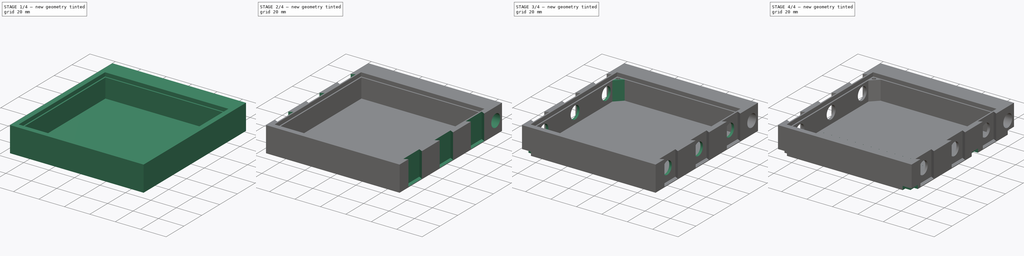
[diagram: build sequence overview — one tinted view per stage of 4, left to right]
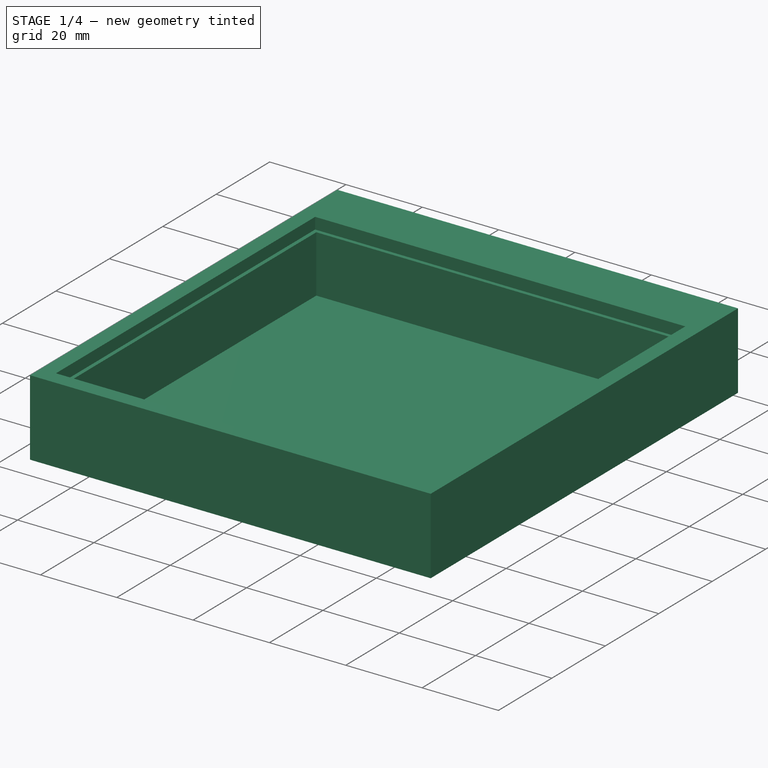
[diagram: stage 1 of 4 — iso view after this stage's code; geometry added in this stage tinted green]
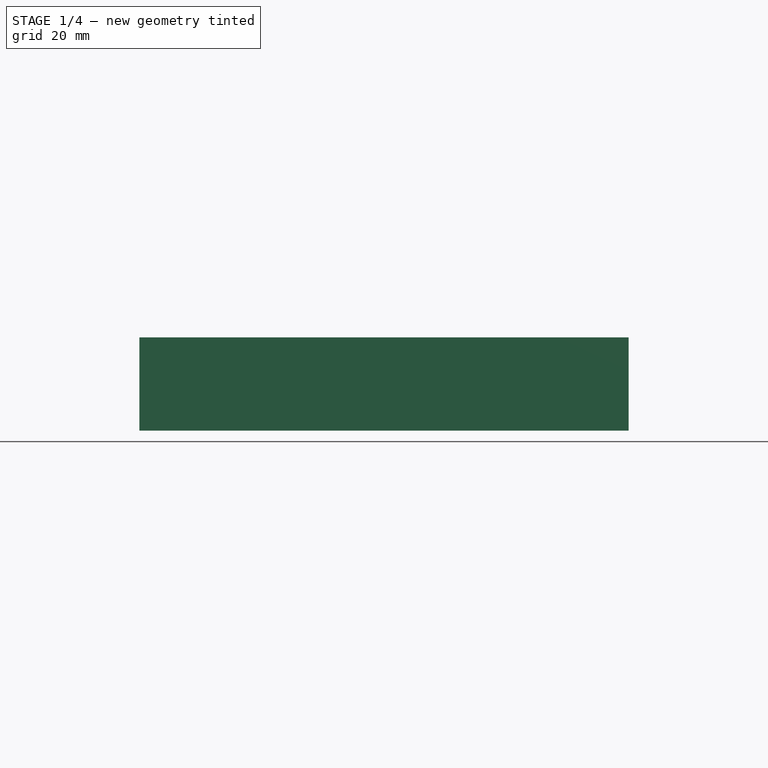
[diagram: stage 1 of 4 — front view after this stage's code; geometry added in this stage tinted green]
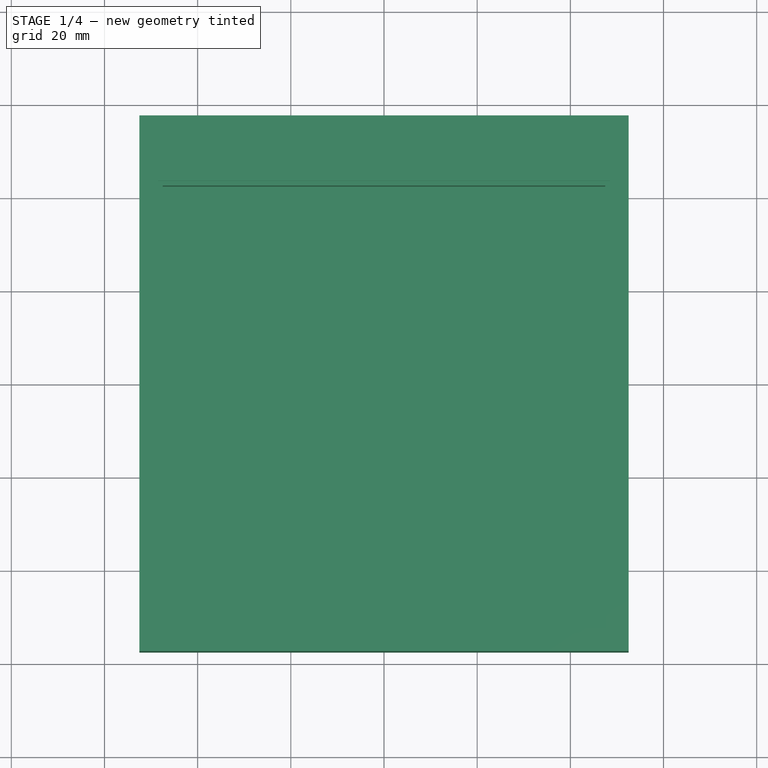
[diagram: stage 1 of 4 — top view after this stage's code; geometry added in this stage tinted green]
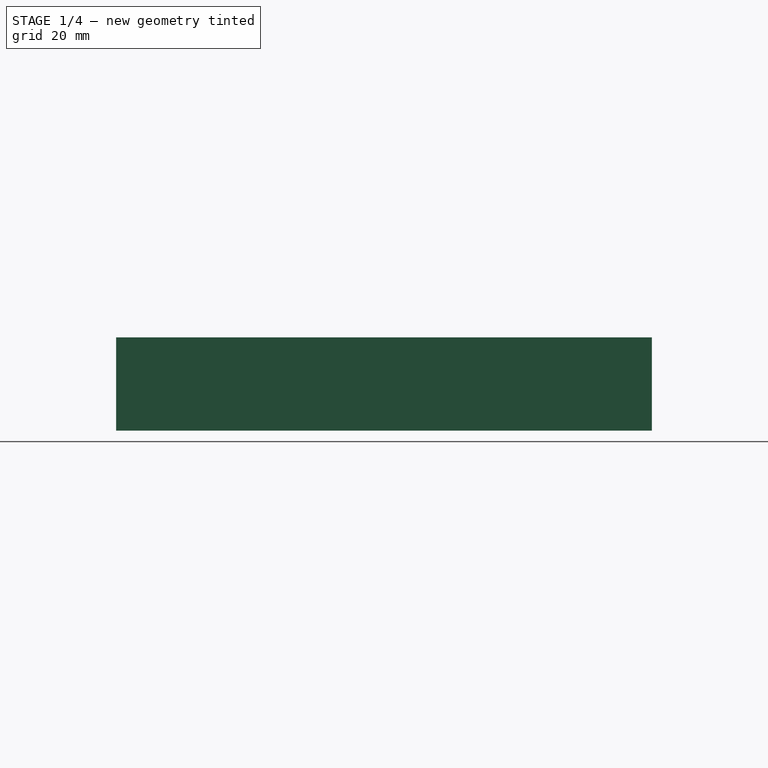
[diagram: stage 1 of 4 — right view after this stage's code; geometry added in this stage tinted green]
FCSTD DOCUMENT  (FreeCAD 0.18R16146 (Git))
Label: Formicarium_Template_M
License: All rights reserved
LicenseURL: http://en.wikipedia.org/wiki/All_rights_reserved
objects: Sketcher::SketchObject×11, PartDesign::Pocket×7, PartDesign::Pad×2, PartDesign::Mirrored×2, PartDesign::LinearPattern×2, PartDesign::SubtractiveLoft×1, PartDesign::MultiTransform×1, PartDesign::Body×1
note: 37 computed .brp shape members not serialized (recipe doc carries the construction recipe); baked Part::Feature solids carry a one-line shape summary decoded from their .brp

FEATURE [Sketcher::SketchObject] Sketch
  MapMode = 5
  Support = -> [XY_Plane]
  sketch-geometry (4):
    g0: LineSegment StartX=-52.5 StartY=57.5 StartZ=0 EndX=52.5 EndY=57.5 EndZ=0
    g1: LineSegment StartX=52.5 StartY=57.5 StartZ=0 EndX=52.5 EndY=-57.5 EndZ=0
    g2: LineSegment StartX=52.5 StartY=-57.5 StartZ=0 EndX=-52.5 EndY=-57.5 EndZ=0
    g3: LineSegment StartX=-52.5 StartY=-57.5 StartZ=0 EndX=-52.5 EndY=57.5 EndZ=0
  constraints (10):
    c: Coincident(g0,g1)
    c: Coincident(g1,g2)
    c: Coincident(g2,g3)
    c: Coincident(g3,g0)
    c: Horizontal(g0)
    c: Vertical(g3)
    c: DistanceX(g0,g0) = 105
    c: DistanceY(g1,g1) = 115
    c: Symmetric(g0,g1,g-1)
    c: Symmetric(g2,g1,g-2)
FEATURE [PartDesign::Pad] Pad  label="Main Body"
  Length = 20
  Length2 = 100
  Profile = -> Sketch
  Type = 0
FEATURE [Sketcher::SketchObject] Sketch001
  MapMode = 5
  Placement = pos=(0,0,20) rot=(0,0,1;0rad)
  Support = -> [Pad]
  sketch-geometry (4):
    g0: LineSegment StartX=-48.5 StartY=43.5 StartZ=0 EndX=48.5 EndY=43.5 EndZ=0
    g1: LineSegment StartX=48.5 StartY=43.5 StartZ=0 EndX=48.5 EndY=-53.5 EndZ=0
    g2: LineSegment StartX=48.5 StartY=-53.5 StartZ=0 EndX=-48.5 EndY=-53.5 EndZ=0
    g3: LineSegment StartX=-48.5 StartY=-53.5 StartZ=0 EndX=-48.5 EndY=43.5 EndZ=0
  constraints (11):
    c: Coincident(g0,g1)
    c: Coincident(g1,g2)
    c: Coincident(g2,g3)
    c: Coincident(g3,g0)
    c: Horizontal(g0)
    c: Vertical(g3)
    c: DistanceX(g2,g2) = 97
    c: DistanceY(g1,g1) = 97
    c: Symmetric(g2,g1,g-2)
    c: Vertical(g1)
    c: DistanceY(g2,g-1) = 53.5
FEATURE [PartDesign::Pocket] Pocket  label="Glass_cut"
  BaseFeature = -> Pad
  Length = 3
  Length2 = 100
  Profile = -> Sketch001
  Type = 0
FEATURE [Sketcher::SketchObject] Sketch002
  MapMode = 5
  Placement = pos=(0,0,17) rot=(0,0,1;0rad)
  Support = -> [Pocket]
  sketch-geometry (4):
    g0: LineSegment StartX=-47.5 StartY=42.5 StartZ=0 EndX=47.5 EndY=42.5 EndZ=0
    g1: LineSegment StartX=47.5 StartY=42.5 StartZ=0 EndX=47.5 EndY=-52.5 EndZ=0
    g2: LineSegment StartX=47.5 StartY=-52.5 StartZ=0 EndX=-47.5 EndY=-52.5 EndZ=0
    g3: LineSegment StartX=-47.5 StartY=-52.5 StartZ=0 EndX=-47.5 EndY=42.5 EndZ=0
  constraints (11):
    c: Coincident(g0,g1)
    c: Coincident(g1,g2)
    c: Coincident(g2,g3)
    c: Coincident(g3,g0)
    c: Horizontal(g0)
    c: Vertical(g1)
    c: DistanceX(g2,g2) = 95
    c: DistanceY(g3,g3) = 95
    c: Symmetric(g2,g1,g-2)
    c: Vertical(g3)
    c: DistanceY(g1,g-1) = 52.5
FEATURE [PartDesign::Pocket] Pocket001  label="Body Cut"
  BaseFeature = -> Pocket
  Length = 15
  Length2 = 100
  Profile = -> Sketch002
  Type = 0
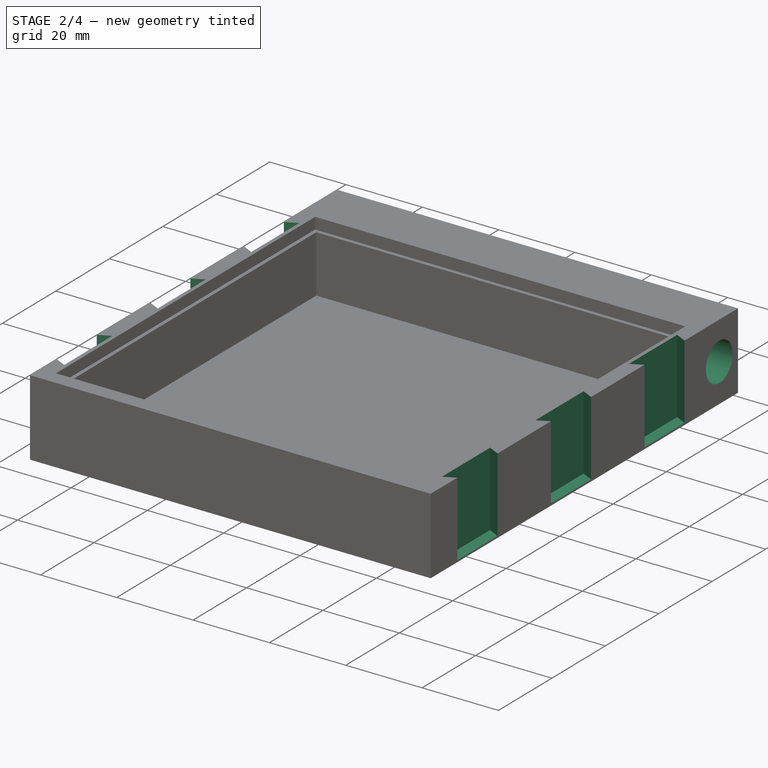
[diagram: stage 2 of 4 — iso view after this stage's code; geometry added in this stage tinted green]
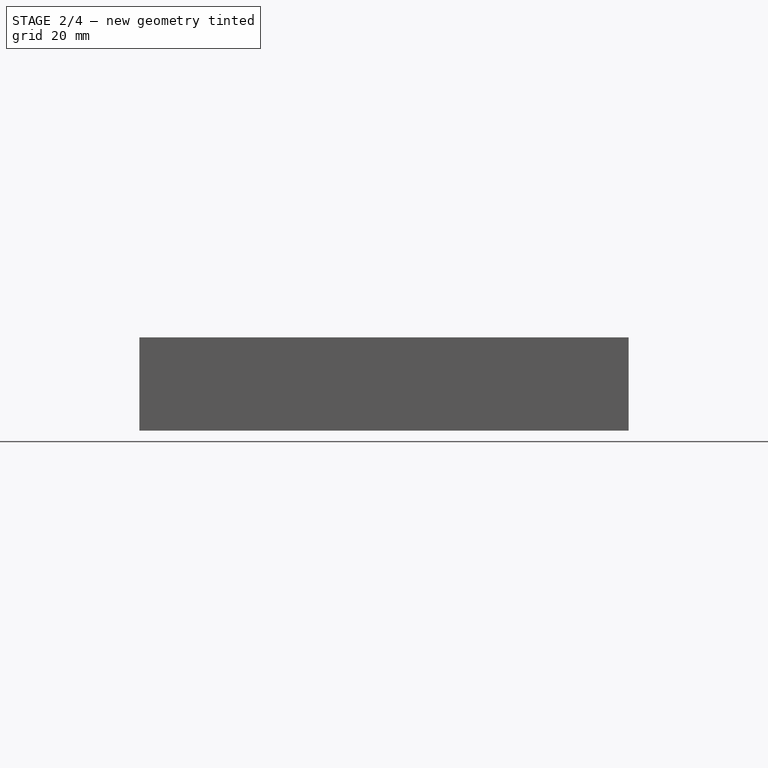
[diagram: stage 2 of 4 — front view after this stage's code; geometry added in this stage tinted green]
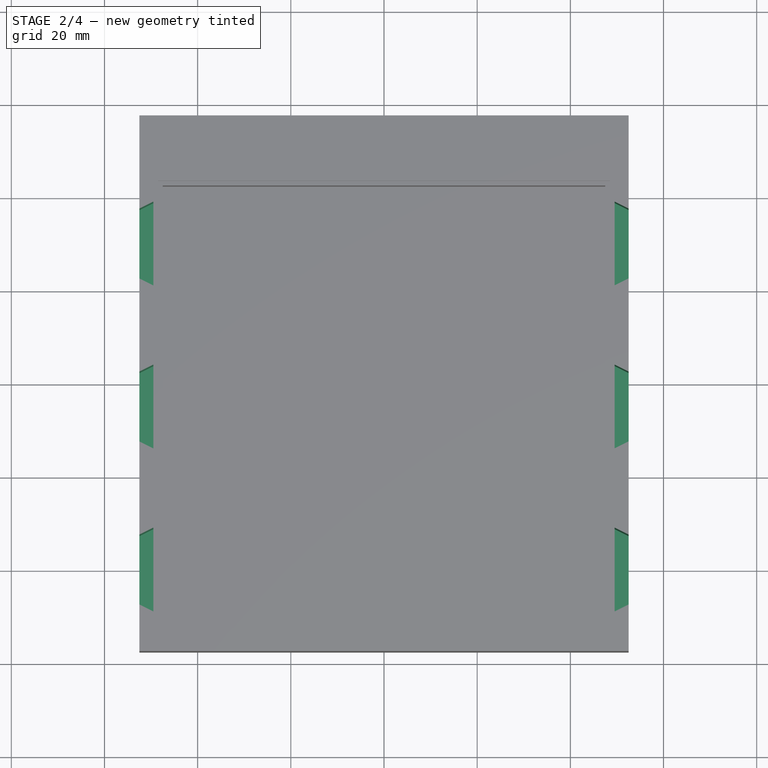
[diagram: stage 2 of 4 — top view after this stage's code; geometry added in this stage tinted green]
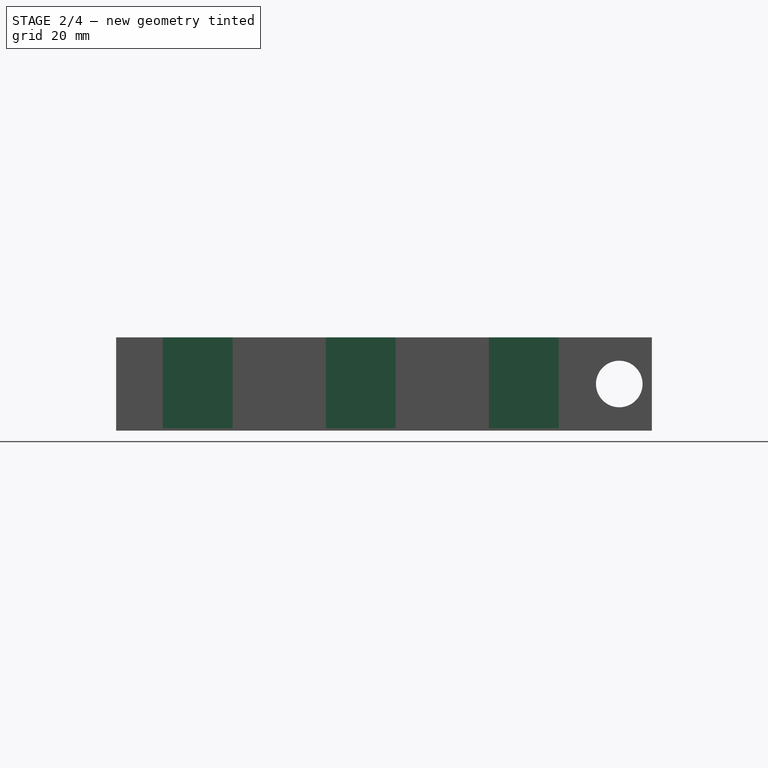
[diagram: stage 2 of 4 — right view after this stage's code; geometry added in this stage tinted green]
FEATURE [Sketcher::SketchObject] Sketch003
  ExternalGeometry = -> [Pocket001]
  MapMode = 5
  Placement = pos=(0,0,2) rot=(0,0,1;0rad)
  Support = -> [Pocket001]
  sketch-geometry (4):
    g0: LineSegment StartX=-43.9 StartY=-48.5 StartZ=0 EndX=-43.5 EndY=-48.5 EndZ=0
    g1: LineSegment StartX=-43.5 StartY=-48.5 StartZ=0 EndX=-43.5 EndY=-48.9 EndZ=0
    g2: LineSegment StartX=-43.5 StartY=-48.9 StartZ=0 EndX=-43.9 EndY=-48.9 EndZ=0
    g3: LineSegment StartX=-43.9 StartY=-48.9 StartZ=0 EndX=-43.9 EndY=-48.5 EndZ=0
  constraints (14):
    c: Coincident(g0,g1)
    c: Coincident(g1,g2)
    c: Coincident(g2,g3)
    c: Coincident(g3,g0)
    c: Horizontal(g0)
    c: Horizontal(g2)
    c: Vertical(g1)
    c: Vertical(g3)
    c: DistanceX(g2,g2) = 0.4
    c: DistanceY(g1,g1) = 0.4
    c: DistanceX(g-3,g-1) = 47.5
    c: DistanceY(g0,g-1) = 48.5
    c: DistanceX(g0,g-1) = 43.5
    c: DistanceY(g-3,g-1) = 52.5
FEATURE [Sketcher::SketchObject] Sketch004
  MapMode = 5
  Placement = pos=(-52.5,0,0) rot=(0.57735,-0.57735,-0.57735;2.0944rad)
  sketch-geometry (1):
    g0: Circle CenterX=-50.5 CenterY=10 CenterZ=0 NormalX=0 NormalY=0 NormalZ=1 AngleXU=0 Radius=5
  constraints (3):
    c: Radius(g0) = 5
    c: DistanceY(g-1,g0) = 10
    c: DistanceX(g0) = -50.5
FEATURE [PartDesign::Pocket] Pocket003  label="Heating Cable"
  BaseFeature = -> Pocket001
  Length = 5
  Length2 = 100
  Profile = -> Sketch004
  Type = 1
FEATURE [Sketcher::SketchObject] Sketch005
  ExternalGeometry = -> [Pocket003]
  MapMode = 5
  Placement = pos=(0,0,20) rot=(0,0,1;0rad)
  Support = -> [Pocket003]
  sketch-geometry (12):
    g0: LineSegment StartX=-52.5 StartY=-47.5 StartZ=0 EndX=-52.5 EndY=-32.5 EndZ=0
    g1: LineSegment StartX=-52.5 StartY=-32.5 StartZ=0 EndX=-49.5 EndY=-31 EndZ=0
    g2: LineSegment StartX=-49.5 StartY=-31 StartZ=0 EndX=-49.5 EndY=-49 EndZ=0
    g3: LineSegment StartX=-49.5 StartY=-49 StartZ=0 EndX=-52.5 EndY=-47.5 EndZ=0
    g4: LineSegment StartX=-52.5 StartY=2.5 StartZ=0 EndX=-52.5 EndY=-12.5 EndZ=0
    g5: LineSegment StartX=-52.5 StartY=-12.5 StartZ=0 EndX=-49.5 EndY=-14 EndZ=0
    g6: LineSegment StartX=-49.5 StartY=-14 StartZ=0 EndX=-49.5 EndY=4 EndZ=0
    g7: LineSegment StartX=-49.5 StartY=4 StartZ=0 EndX=-52.5 EndY=2.5 EndZ=0
    g8: LineSegment StartX=-52.5 StartY=37.5 StartZ=0 EndX=-52.5 EndY=22.5 EndZ=0
    g9: LineSegment StartX=-52.5 StartY=22.5 StartZ=0 EndX=-49.5 EndY=21 EndZ=0
    g10: LineSegment StartX=-49.5 StartY=21 StartZ=0 EndX=-49.5 EndY=39 EndZ=0
    g11: LineSegment StartX=-49.5 StartY=39 StartZ=0 EndX=-52.5 EndY=37.5 EndZ=0
  constraints (37):
    c: Coincident(g0,g1)
    c: Coincident(g1,g2)
    c: Coincident(g2,g3)
    c: Coincident(g3,g0)
    c: Vertical(g2)
    c: DistanceY(g2,g2) = 18
    c: DistanceY(g0,g0) = 15
    c: Vertical(g0)
    c: DistanceX(g0,g1) = 3
    c: Equal(g1,g3)
    c: DistanceY(g0,g-1) = 47.5
    c: DistanceX(g0,g-1) = 52.5
    c: Coincident(g4,g5)
    c: Coincident(g5,g6)
    c: Coincident(g6,g7)
    c: Coincident(g7,g4)
    c: Equal(g5,g3)
    c: Equal(g7,g1)
    c: Equal(g6,g2)
    c: Equal(g4,g0)
    c: DistanceX(g4,g6) = 3
    c: Vertical(g4)
    c: DistanceY(g0,g4) = 20
    c: DistanceX(g4,g-1) = 52.5
    c: DistanceY(g-3,g-1) = 57.5
    c: Coincident(g8,g9)
    c: Coincident(g9,g10)
    c: Coincident(g10,g11)
    c: Coincident(g11,g8)
    c: Equal(g8,g0)
    c: Equal(g2,g10)
    c: Equal(g1,g11)
    c: Equal(g9,g3)
    c: Vertical(g8)
    c: Vertical(g10)
    c: DistanceY(g4,g8) = 20
    c: DistanceX(g8,g-1) = 52.5
FEATURE [PartDesign::Pocket] Pocket004  label="Connector Cutouts"
  BaseFeature = -> Pocket003
  Length = 19.5
  Length2 = 100
  Profile = -> Sketch005
  Type = 0
FEATURE [PartDesign::Mirrored] Mirrored  label="CC_Mirror"
  BaseFeature = -> Pocket004
  MirrorPlane = -> Sketch005 [V_Axis]
  Originals = -> [Pocket004]
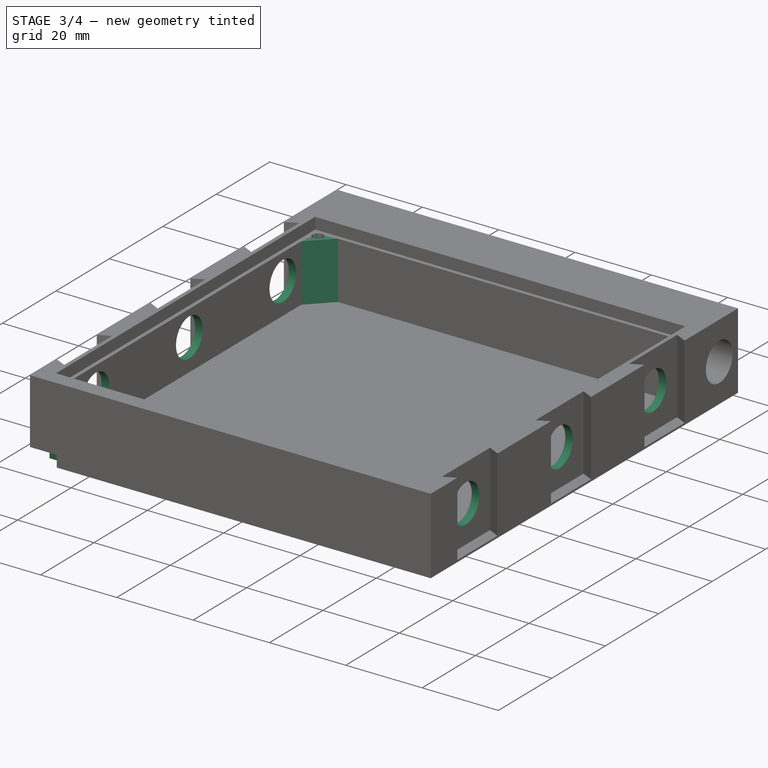
[diagram: stage 3 of 4 — iso view after this stage's code; geometry added in this stage tinted green]
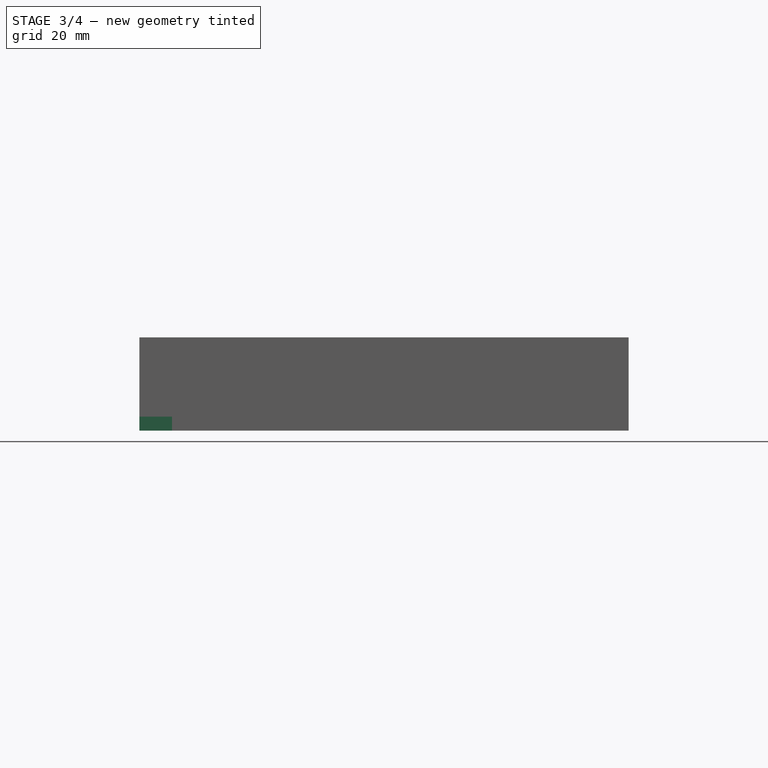
[diagram: stage 3 of 4 — front view after this stage's code; geometry added in this stage tinted green]
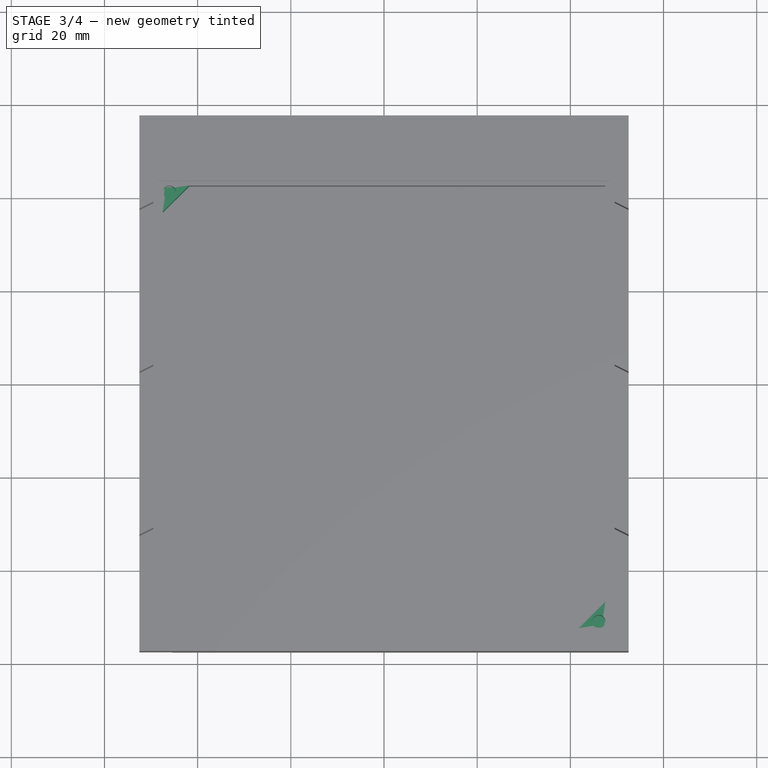
[diagram: stage 3 of 4 — top view after this stage's code; geometry added in this stage tinted green]
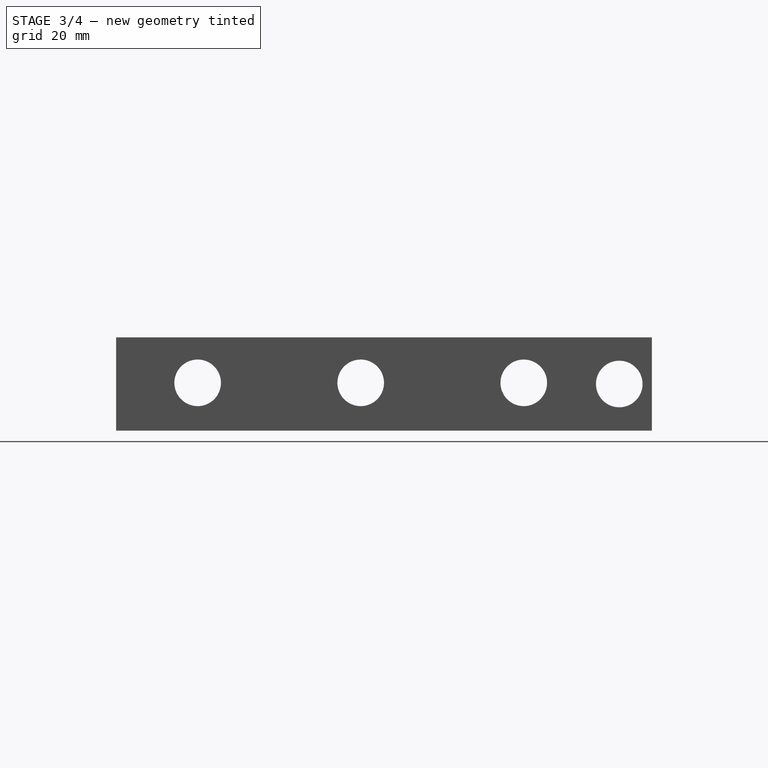
[diagram: stage 3 of 4 — right view after this stage's code; geometry added in this stage tinted green]
FEATURE [Sketcher::SketchObject] Sketch006
  ExternalGeometry = -> [Mirrored]
  MapMode = 5
  Placement = pos=(-49.5,0,0) rot=(0.57735,-0.57735,-0.57735;2.0944rad)
  Support = -> [Mirrored]
  sketch-geometry (3):
    g0: Circle CenterX=5 CenterY=10.25 CenterZ=0 NormalX=0 NormalY=0 NormalZ=1 AngleXU=0 Radius=5
    g1: Circle CenterX=40 CenterY=10.25 CenterZ=0 NormalX=0 NormalY=0 NormalZ=1 AngleXU=0 Radius=5
    g2: Circle CenterX=-30 CenterY=10.25 CenterZ=0 NormalX=0 NormalY=0 NormalZ=1 AngleXU=0 Radius=5
  constraints (9):
    c: Radius(g0) = 5
    c: DistanceY(g-3,g0) = 9.75
    c: DistanceX(g-3,g0) = 7.5
    c: Equal(g1,g0)
    c: Equal(g0,g2)
    c: Horizontal(g0,g2)
    c: Horizontal(g2,g1)
    c: DistanceX(g-5,g2) = 7.5
    c: DistanceX(g-4,g1) = 7.5
FEATURE [PartDesign::Pocket] Pocket005
  BaseFeature = -> Mirrored
  Length = 5
  Length2 = 100
  Profile = -> Sketch006
  Type = 1
FEATURE [Sketcher::SketchObject] Sketch010
  ExternalGeometry = -> [Pocket005]
  MapMode = 5
  Placement = pos=(0,0,2) rot=(0,0,1;0rad)
  Support = -> [Pocket005]
  sketch-geometry (6):
    g0: LineSegment StartX=-47.5 StartY=42.5 StartZ=0 EndX=-47.5 EndY=36.8431 EndZ=0
    g1: LineSegment StartX=-47.5 StartY=36.8431 StartZ=0 EndX=-41.8431 EndY=42.5 EndZ=0
    g2: LineSegment StartX=-41.8431 StartY=42.5 StartZ=0 EndX=-47.5 EndY=42.5 EndZ=0
    g3: LineSegment StartX=41.8431 StartY=-52.5 StartZ=0 EndX=47.5 EndY=-52.5 EndZ=0
    g4: LineSegment StartX=47.5 StartY=-52.5 StartZ=0 EndX=47.5 EndY=-46.8431 EndZ=0
    g5: LineSegment StartX=47.5 StartY=-46.8431 StartZ=0 EndX=41.8431 EndY=-52.5 EndZ=0
  constraints (16):
    c: Coincident(g0,g1)
    c: Coincident(g0,g2)
    c: Coincident(g1,g2)
    c: Coincident(g3,g5)
    c: Coincident(g3,g4)
    c: Coincident(g4,g5)
    c: Perpendicular(g0,g2)
    c: Equal(g0,g2)
    c: Distance(g5) = 8
    c: Equal(g3,g4)
    c: Perpendicular(g4,g3)
    c: PointOnObject(g1,g-3)
    c: Coincident(g0,g-3)
    c: Coincident(g-4,g3)
    c: PointOnObject(g3,g-4)
    c: Equal(g1,g5)
FEATURE [PartDesign::Pad] Pad001  label="Borehole_Support"
  BaseFeature = -> Pocket005
  Length = 15
  Length2 = 100
  Profile = -> Sketch010
  Type = 0
FEATURE [Sketcher::SketchObject] Sketch011
  ExternalGeometry = -> [Pad001]
  MapMode = 5
  Placement = pos=(0,0,17) rot=(0,0,1;0rad)
  Support = -> [Pad001]
  sketch-geometry (2):
    g0: Circle CenterX=-46.1 CenterY=41.1 CenterZ=0 NormalX=0 NormalY=0 NormalZ=1 AngleXU=0 Radius=1.4
    g1: Circle CenterX=46.1 CenterY=-51.1 CenterZ=0 NormalX=0 NormalY=0 NormalZ=1 AngleXU=0 Radius=1.4
  constraints (6):
    c: Radius(g0) = 1.4
    c: Equal(g0,g1)
    c: Tangent(g-3,g0)
    c: Tangent(g-4,g0)
    c: Tangent(g-6,g1)
    c: Tangent(g-5,g1)
FEATURE [PartDesign::Pocket] Pocket009  label="Boreholes"
  BaseFeature = -> Pad001
  Length = 8
  Length2 = 100
  Profile = -> Sketch011
  Type = 0
FEATURE [Sketcher::SketchObject] Sketch012
  MapMode = 5
  Placement = pos=(0,0,0) rot=(1,0,0;3.14159rad)
  Support = -> [Pocket009]
  sketch-geometry (16):
    g0: LineSegment StartX=-52.5 StartY=-10 StartZ=0 EndX=-49.5 EndY=-10 EndZ=0
    g1: LineSegment StartX=-49.5 StartY=-10 StartZ=0 EndX=-49.5 EndY=-17 EndZ=0
    g2: LineSegment StartX=-49.5 StartY=-17 StartZ=0 EndX=-52.5 EndY=-17 EndZ=0
    g3: LineSegment StartX=-52.5 StartY=-17 StartZ=0 EndX=-52.5 EndY=-10 EndZ=0
    g4: LineSegment StartX=-52.5 StartY=50.5 StartZ=0 EndX=-49.5 EndY=50.5 EndZ=0
    g5: LineSegment StartX=-49.5 StartY=50.5 StartZ=0 EndX=-49.5 EndY=54.5 EndZ=0
    g6: LineSegment StartX=-49.5 StartY=54.5 StartZ=0 EndX=-45.5 EndY=54.5 EndZ=0
    g7: LineSegment StartX=-45.5 StartY=54.5 StartZ=0 EndX=-45.5 EndY=57.5 EndZ=0
    g8: LineSegment StartX=-45.5 StartY=57.5 StartZ=0 EndX=-52.5 EndY=57.5 EndZ=0
    g9: LineSegment StartX=-52.5 StartY=57.5 StartZ=0 EndX=-52.5 EndY=50.5 EndZ=0
    g10: LineSegment StartX=-52.5 StartY=-50.5 StartZ=0 EndX=-52.5 EndY=-57.5 EndZ=0
    g11: LineSegment StartX=-52.5 StartY=-57.5 StartZ=0 EndX=-45.5 EndY=-57.5 EndZ=0
    g12: LineSegment StartX=-45.5 StartY=-57.5 StartZ=0 EndX=-45.5 EndY=-54.5 EndZ=0
    g13: LineSegment StartX=-45.5 StartY=-54.5 StartZ=0 EndX=-49.5 EndY=-54.5 EndZ=0
    g14: LineSegment StartX=-49.5 StartY=-54.5 StartZ=0 EndX=-49.5 EndY=-50.5 EndZ=0
    g15: LineSegment StartX=-49.5 StartY=-50.5 StartZ=0 EndX=-52.5 EndY=-50.5 EndZ=0
  constraints (48):
    c: Coincident(g0,g1)
    c: Coincident(g1,g2)
    c: Coincident(g2,g3)
    c: Coincident(g3,g0)
    c: Horizontal(g0)
    c: Horizontal(g2)
    c: Vertical(g3)
    c: DistanceY(g1,g1) = 7
    c: DistanceX(g0,g0) = 3
    c: Coincident(g4,g5)
    c: Coincident(g5,g6)
    c: Coincident(g6,g7)
    c: Vertical(g7)
    c: Coincident(g7,g8)
    c: Coincident(g8,g9)
    c: Coincident(g9,g4)
    c: Vertical(g9)
    c: Vertical(g5)
    c: Horizontal(g8)
    c: Horizontal(g4)
    c: DistanceX(g4,g4) = 3
    c: DistanceX(g8,g8) = 7
    c: DistanceY(g7,g7) = 3
    c: DistanceY(g9,g9) = 7
    c: Perpendicular(g5,g6)
    c: DistanceX(g4,g-1) = 52.5
    c: DistanceY(g8) = 57.5
    c: Coincident(g10,g11)
    c: Horizontal(g11)
    c: Coincident(g11,g12)
    c: Coincident(g12,g13)
    c: Horizontal(g13)
    c: Coincident(g13,g14)
    c: Coincident(g14,g15)
    c: Coincident(g15,g10)
    c: Horizontal(g15)
    c: Vertical(g14)
    c: Vertical(g10)
    c: Vertical(g12)
    c: DistanceX(g11,g11) = 7
    c: DistanceX(g15,g15) = 3
    c: DistanceY(g10,g10) = 7
    c: DistanceY(g12,g12) = 3
    c: DistanceY(g10,g-1) = 57.5
    c: Vertical(g2,g4)
    c: Vertical(g4,g10)
    c: Equal(g2,g0)
    c: DistanceY(g0,g-1) = 10
FEATURE [PartDesign::Pocket] Pocket010
  BaseFeature = -> Pocket009
  Length = 3
  Length2 = 100
  Profile = -> Sketch012
  Type = 0
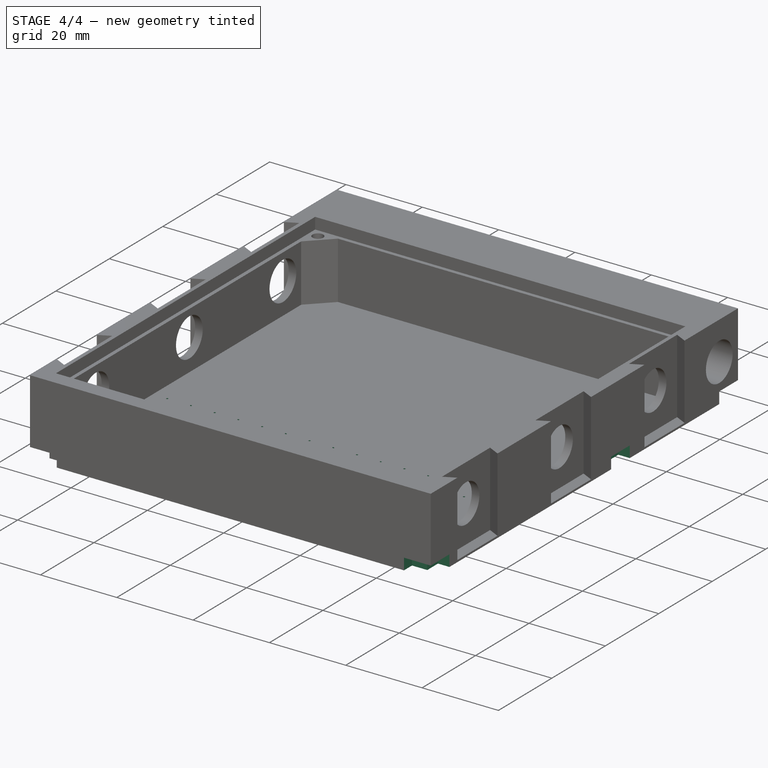
[diagram: stage 4 of 4 — iso view after this stage's code; geometry added in this stage tinted green]
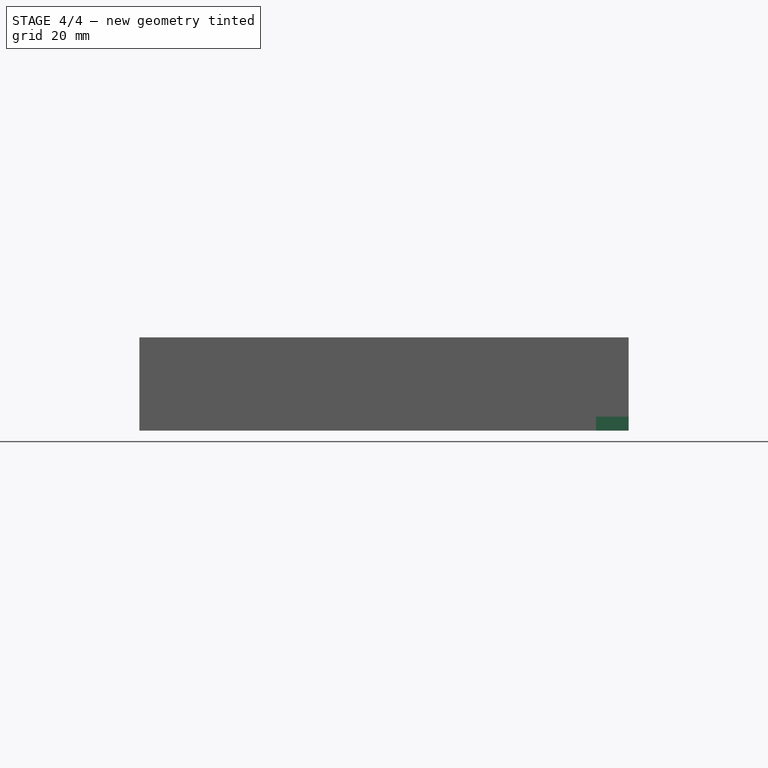
[diagram: stage 4 of 4 — front view after this stage's code; geometry added in this stage tinted green]
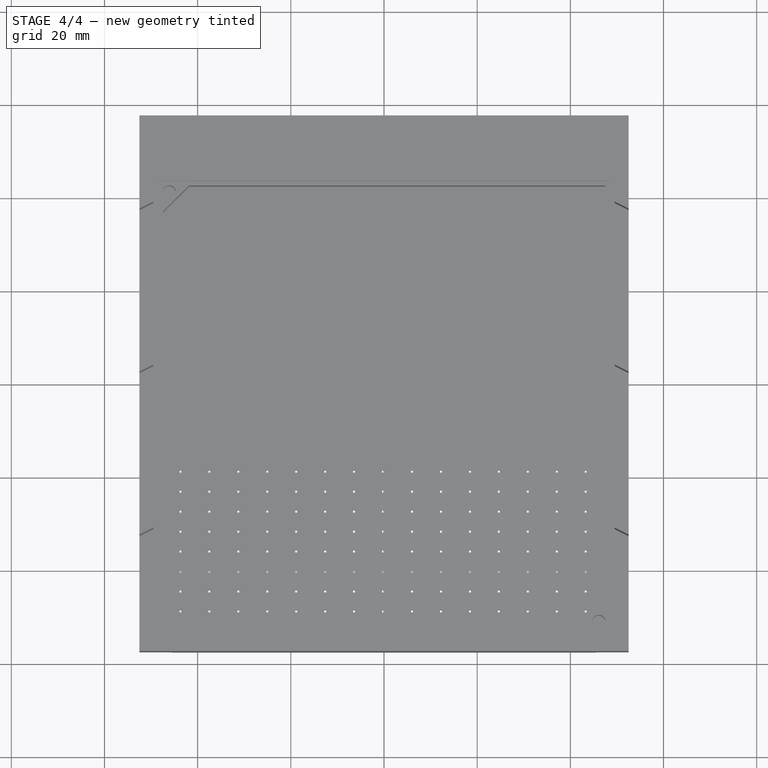
[diagram: stage 4 of 4 — top view after this stage's code; geometry added in this stage tinted green]
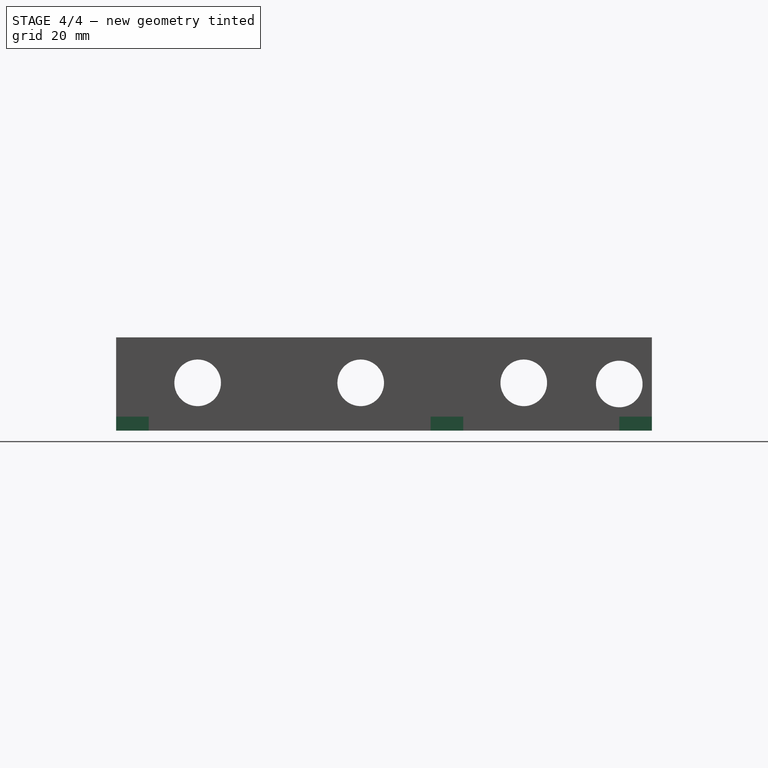
[diagram: stage 4 of 4 — right view after this stage's code; geometry added in this stage tinted green]
FEATURE [PartDesign::Mirrored] Mirrored001
  BaseFeature = -> Pocket010
  MirrorPlane = -> Sketch012 [V_Axis]
  Originals = -> [Pocket010]
FEATURE [Sketcher::SketchObject] Sketch013
  MapMode = 5
  Placement = pos=(0,0,0) rot=(1,0,0;3.14159rad)
  Support = -> [Mirrored001]
  sketch-geometry (4):
    g0: LineSegment StartX=-44.3 StartY=49.3 StartZ=0 EndX=-43.1 EndY=49.3 EndZ=0
    g1: LineSegment StartX=-43.1 StartY=49.3 StartZ=0 EndX=-43.1 EndY=48.1 EndZ=0
    g2: LineSegment StartX=-43.1 StartY=48.1 StartZ=0 EndX=-44.3 EndY=48.1 EndZ=0
    g3: LineSegment StartX=-44.3 StartY=48.1 StartZ=0 EndX=-44.3 EndY=49.3 EndZ=0
  constraints (12):
    c: Coincident(g0,g1)
    c: Coincident(g1,g2)
    c: Coincident(g2,g3)
    c: Coincident(g3,g0)
    c: Horizontal(g0)
    c: Horizontal(g2)
    c: Vertical(g1)
    c: Vertical(g3)
    c: DistanceY(g1,g1) = 1.2
    c: DistanceX(g0,g0) = 1.2
    c: DistanceY(g1) = 48.1
    c: DistanceX(g1) = -43.1
FEATURE [PartDesign::SubtractiveLoft] SubtractiveLoft
  BaseFeature = -> Mirrored001
  Closed = false
  Profile = -> Sketch003
  Ruled = false
  Sections = -> [Sketch013]
FEATURE [PartDesign::LinearPattern] LinearPattern
  Direction = -> Sketch003 [H_Axis]
  Length = 87
  Occurrences = 15
FEATURE [PartDesign::LinearPattern] LinearPattern001
  Direction = -> Sketch003 [V_Axis]
  Length = 30
  Occurrences = 8
FEATURE [PartDesign::MultiTransform] MultiTransform
  BaseFeature = -> SubtractiveLoft
  Originals = -> [SubtractiveLoft]
  Transformations = -> [LinearPattern,LinearPattern001]
FEATURE [PartDesign::Body] Body
  Group = -> [Sketch,Pad,Sketch001,Pocket,Sketch002,Pocket001,Sketch003,Sketch004,Pocket003,Sketch005,Pocket004,Mirrored,Sketch006,Pocket005,Sketch010,Pad001,Sketch011,Pocket009,Sketch012,Pocket010,Mirrored001,Sketch013,SubtractiveLoft,MultiTransform,LinearPattern,LinearPattern001]
  Origin = -> Origin
  Tip = -> MultiTransform
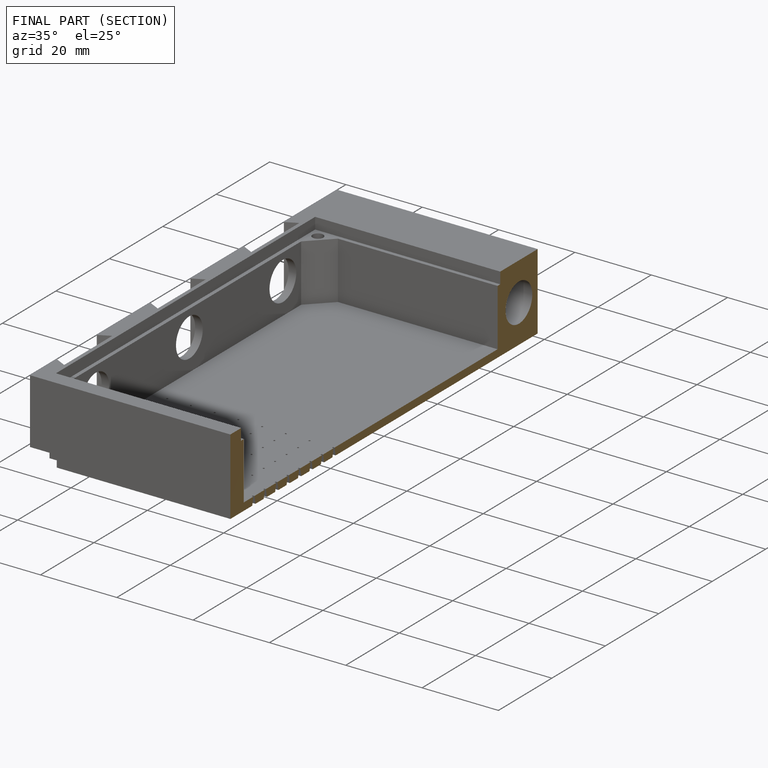
[diagram: finished part — half-section view (interior)]
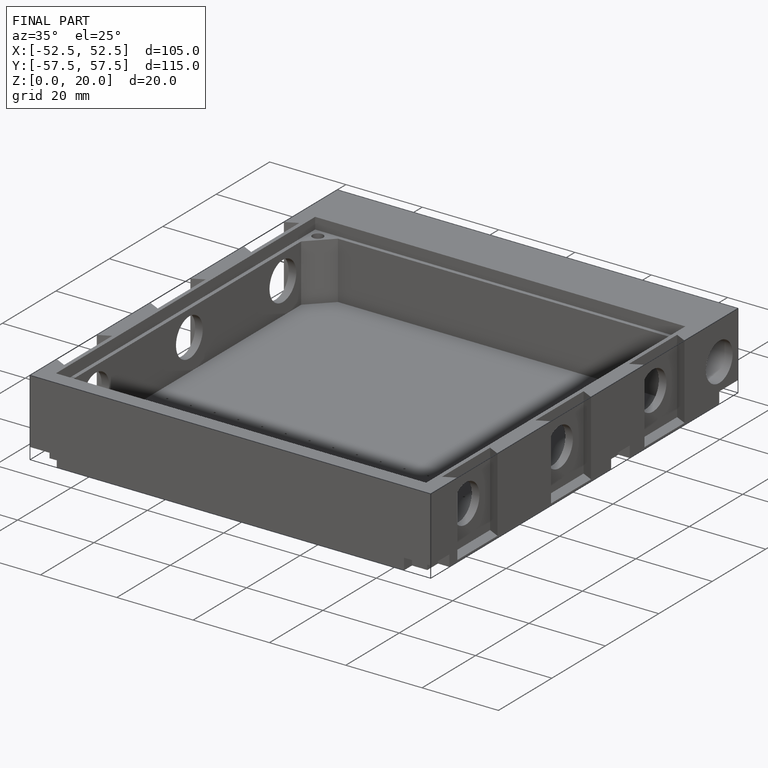
[diagram: finished part — iso view with bounding-box wireframe]
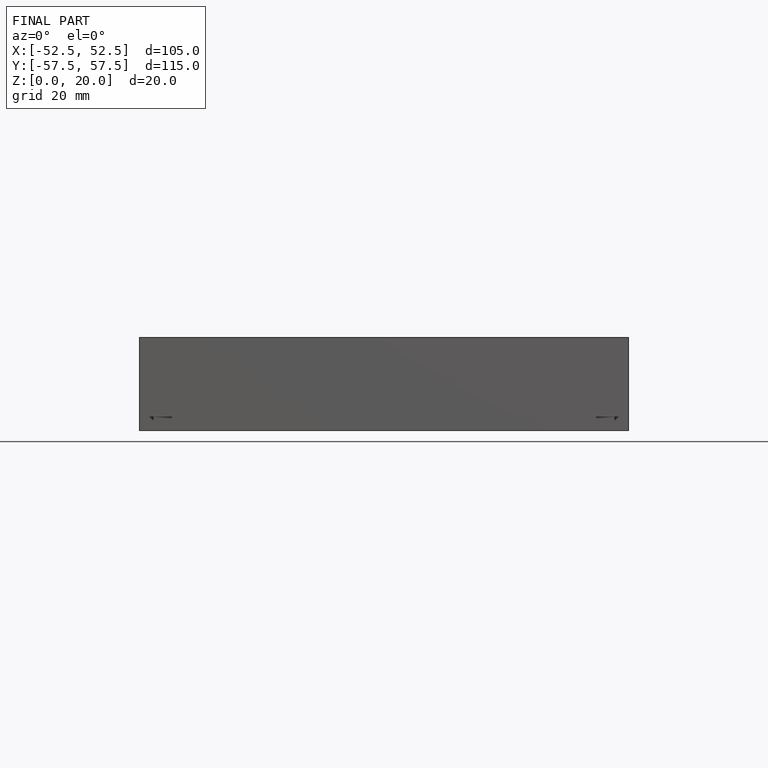
[diagram: finished part — front view with bounding-box wireframe]
